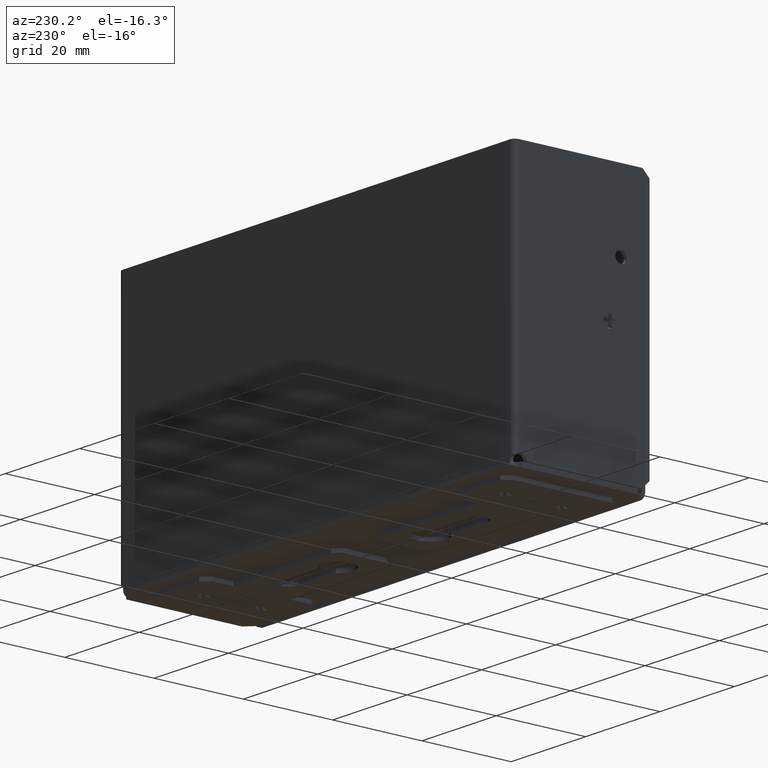
[diagram: clean part render]
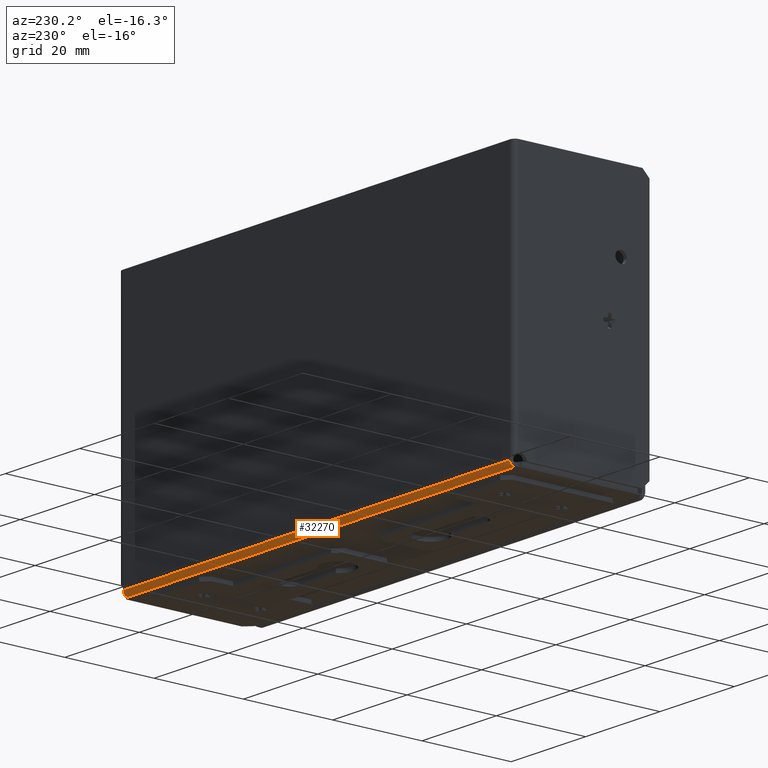
[diagram: same view with one face highlighted and labeled with its STEP entity id]
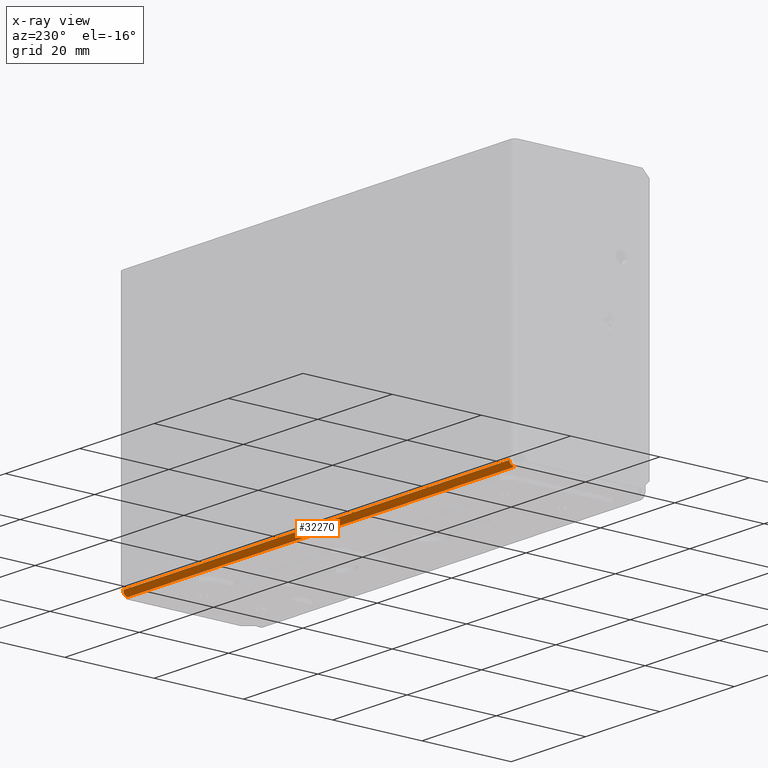
[diagram: x-ray of the same camera — body ghosted, the highlighted face saturated]
A machine part, auxiliary view. The second image highlights one B-rep face of the part: STEP entity #32270.
The next image is the same camera in x-ray: the body ghosted, the highlighted face saturated — about 0% of this face is hidden behind the body in this view.
In plain terms, the highlighted cylindrical surface (edge-blend (fillet) strip) has radius 1.0668 mm, axis along (1, 0, 0).
Its self-contained STEP definition (entity closure, byte-faithful):
#6108 = CARTESIAN_POINT ( 'NONE',  ( -51.93059140683074300, -2.513104168551563200E-015, -28.87976875488275000 ) ) ;
#6111 = CARTESIAN_POINT ( 'NONE',  ( -51.91759999999999300, -2.168404344971008900E-016, -28.74010000000004400 ) ) ;
#6116 = CARTESIAN_POINT ( 'NONE',  ( -51.94357817004453200, -0.02776594853024655700, -29.01933264303447000 ) ) ;
#6117 = CARTESIAN_POINT ( 'NONE',  ( -51.96955634008909200, -0.1346446809036863600, -29.27736072825965900 ) ) ;
#6118 = CARTESIAN_POINT ( 'NONE',  ( -51.98254542511136800, -0.2137154125296287500, -29.39569844086921800 ) ) ;
#6119 = CARTESIAN_POINT ( 'NONE',  ( -52.00852359515592800, -0.4112015591307676100, -29.59318458747035400 ) ) ;
#6120 = CARTESIAN_POINT ( 'NONE',  ( -52.02151268017821200, -0.5295392717403302200, -29.67225531909629400 ) ) ;
#6123 = CARTESIAN_POINT ( 'NONE',  ( -52.04749085022277200, -0.7875673569655229400, -29.77913405146972900 ) ) ;
#6124 = CARTESIAN_POINT ( 'NONE',  ( -52.06047761343655400, -0.9271312451171762600, -29.80689999999997000 ) ) ;
#6126 = CARTESIAN_POINT ( 'NONE',  ( -52.07346902026730400, -1.066800000000003100, -29.80689999999997000 ) ) ;
#6154 = LINE ( 'NONE', #6156, #15042 ) ;
#6156 = CARTESIAN_POINT ( 'NONE',  ( -53.18759999999992500, -1.066800000000003100, -29.80689999999997400 ) ) ;
#6157 = DIRECTION ( 'NONE',  ( -1.000000000000000000, 1.400190022560582100E-018, -4.677821906959356400E-016 ) ) ;
#9694 = CARTESIAN_POINT ( 'NONE',  ( -104.1523025205826400, -1.066800000000000200, -28.74009999999999500 ) ) ;
#9698 = DIRECTION ( 'NONE',  ( 1.000000000000000000, -0.0000000000000000000, 4.677821906959356400E-016 ) ) ;
#9701 = CYLINDRICAL_SURFACE ( 'NONE', #21793, 1.066799999999999700 ) ;
#9702 = FACE_OUTER_BOUND ( 'NONE', #41508, .T. ) ;
#9705 = DIRECTION ( 'NONE',  ( 0.0000000000000000000, 0.0000000000000000000, -1.000000000000000000 ) ) ;
#11477 = CARTESIAN_POINT ( 'NONE',  ( 52.06047761343650400, -0.9271312451172611900, -29.80689999999992100 ) ) ;
#11478 = CARTESIAN_POINT ( 'NONE',  ( 52.07346902026738900, -1.066800000000003100, -29.80689999999992100 ) ) ;
#11486 = CARTESIAN_POINT ( 'NONE',  ( 52.04749085022272200, -0.7875673569655427000, -29.77913405146968600 ) ) ;
#11487 = CARTESIAN_POINT ( 'NONE',  ( 52.02151268017816200, -0.5295392717403650800, -29.67225531909626900 ) ) ;
#11488 = CARTESIAN_POINT ( 'NONE',  ( 52.00852359515589300, -0.4112015591308040300, -29.59318458747032900 ) ) ;
#11489 = CARTESIAN_POINT ( 'NONE',  ( 51.98254542511133300, -0.2137154125296680000, -29.39569844086922100 ) ) ;
#11490 = CARTESIAN_POINT ( 'NONE',  ( 51.96955634008903500, -0.1346446809037229500, -29.27736072825967300 ) ) ;
#11491 = CARTESIAN_POINT ( 'NONE',  ( 51.94357817004447500, -0.02776594853027068000, -29.01933264303450600 ) ) ;
#11492 = CARTESIAN_POINT ( 'NONE',  ( 51.93059140683070800, -1.681919746789472200E-014, -28.87976875488290300 ) ) ;
#11493 = CARTESIAN_POINT ( 'NONE',  ( 51.91760000000002900, 0.0000000000000000000, -28.74009999999992000 ) ) ;
#11640 = LINE ( 'NONE', #11641, #15303 ) ;
#11641 = CARTESIAN_POINT ( 'NONE',  ( -53.18759999999992500, 0.0000000000000000000, -28.74009999999997000 ) ) ;
#11642 = DIRECTION ( 'NONE',  ( -1.000000000000000000, 0.0000000000000000000, -4.677821906959356400E-016 ) ) ;
#12409 = ORIENTED_EDGE ( 'NONE', *, *, #37566, .F. ) ;
#15042 = VECTOR ( 'NONE', #6157, 1000.000000000000000 ) ;
#15303 = VECTOR ( 'NONE', #11642, 1000.000000000000000 ) ;
#21793 = AXIS2_PLACEMENT_3D ( 'NONE', #9694, #9698, #9705 ) ;
#27552 = VERTEX_POINT ( 'NONE', #38857 ) ;
#32270 = ADVANCED_FACE ( 'NONE', ( #9702 ), #9701, .T. ) ;
#34486 = ORIENTED_EDGE ( 'NONE', *, *, #37616, .F. ) ;
#37392 = EDGE_CURVE ( 'NONE', #42429, #42789, #39489, .T. ) ;
#37402 = EDGE_CURVE ( 'NONE', #42781, #42789, #6154, .T. ) ;
#37566 = EDGE_CURVE ( 'NONE', #42781, #27552, #39506, .T. ) ;
#37616 = EDGE_CURVE ( 'NONE', #27552, #42429, #11640, .T. ) ;
#38857 = CARTESIAN_POINT ( 'NONE',  ( 51.91760000000002900, 0.0000000000000000000, -28.74009999999992000 ) ) ;
#39489 = B_SPLINE_CURVE_WITH_KNOTS ( 'NONE', 3,
 ( #6111, #6108, #6116, #6117, #6118, #6119, #6120, #6123, #6124, #6126 ),
 .UNSPECIFIED., .F., .F.,
 ( 4, 2, 2, 2, 4 ),
 ( 0.0000000000000000000, 0.2500000000000000000, 0.5000000000000000000, 0.7500000000000000000, 1.000000000000000000 ),
 .UNSPECIFIED. ) ;
#39506 = B_SPLINE_CURVE_WITH_KNOTS ( 'NONE', 3,
 ( #11478, #11477, #11486, #11487, #11488, #11489, #11490, #11491, #11492, #11493 ),
 .UNSPECIFIED., .F., .F.,
 ( 4, 2, 2, 2, 4 ),
 ( 0.0000000000000000000, 0.2500000000000000000, 0.5000000000000000000, 0.7500000000000000000, 1.000000000000000000 ),
 .UNSPECIFIED. ) ;
#41508 = EDGE_LOOP ( 'NONE', ( #47756, #34486, #12409, #47762 ) ) ;
#42429 = VERTEX_POINT ( 'NONE', #43596 ) ;
#42781 = VERTEX_POINT ( 'NONE', #43860 ) ;
#42789 = VERTEX_POINT ( 'NONE', #43868 ) ;
#43596 = CARTESIAN_POINT ( 'NONE',  ( -51.91759999999999300, -2.168404344971008900E-016, -28.74010000000004400 ) ) ;
#43860 = CARTESIAN_POINT ( 'NONE',  ( 52.07346902026738900, -1.066800000000003100, -29.80689999999992100 ) ) ;
#43868 = CARTESIAN_POINT ( 'NONE',  ( -52.07346902026730400, -1.066800000000003100, -29.80689999999997000 ) ) ;
#47756 = ORIENTED_EDGE ( 'NONE', *, *, #37392, .F. ) ;
#47762 = ORIENTED_EDGE ( 'NONE', *, *, #37402, .T. ) ;